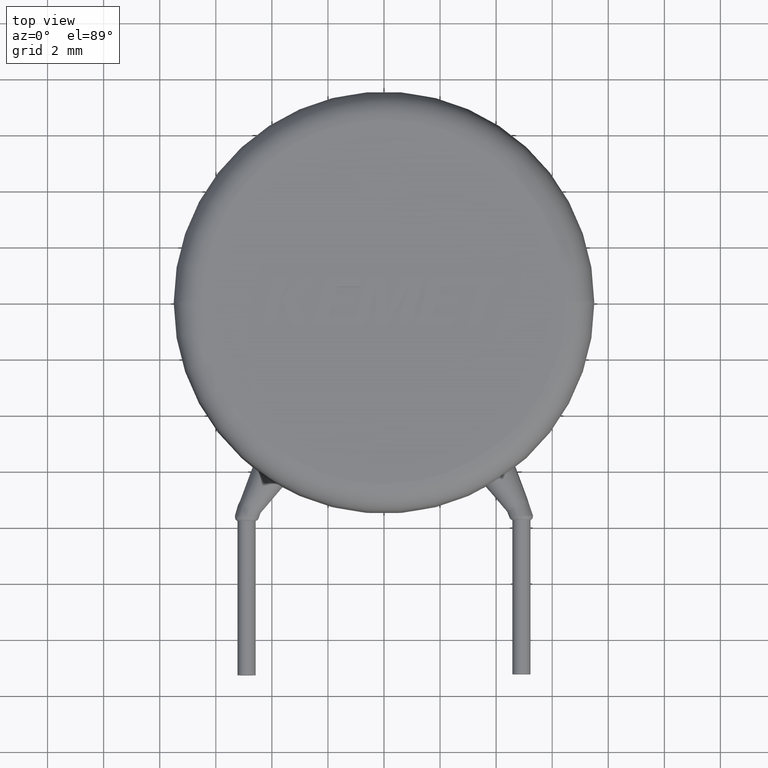
[diagram: clean part render]
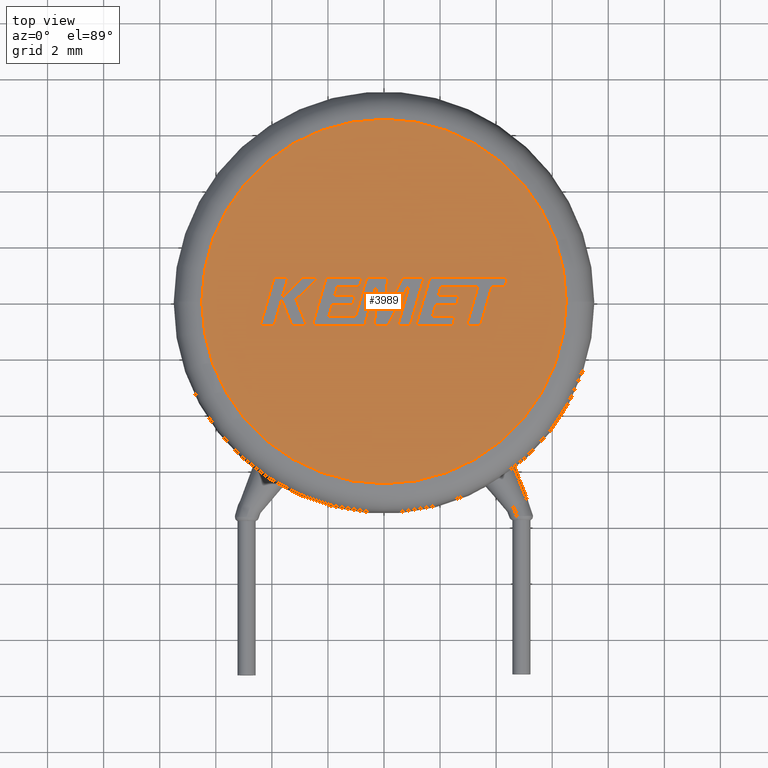
[diagram: same view with one face highlighted and labeled with its STEP entity id]
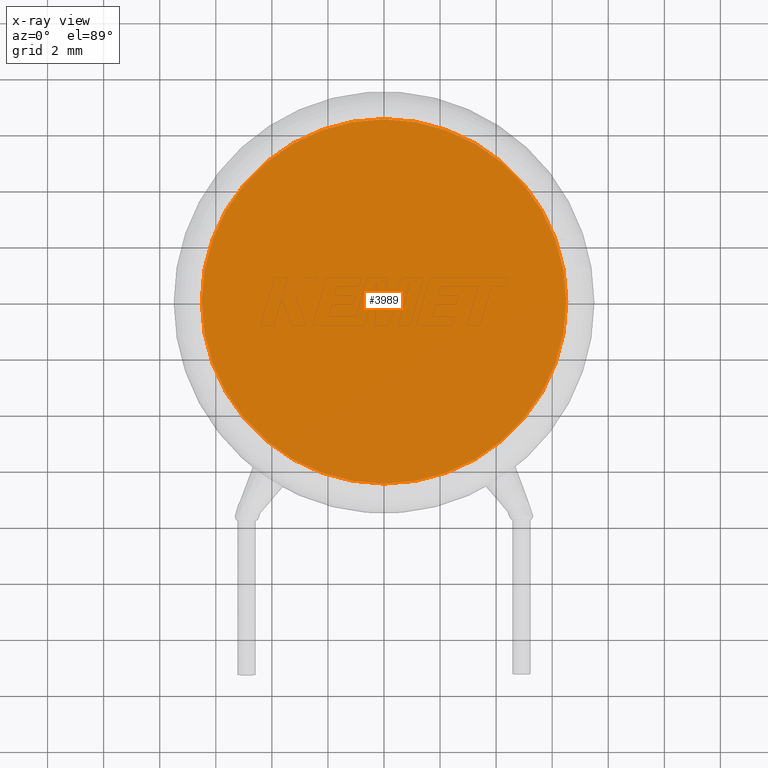
[diagram: x-ray of the same camera — body ghosted, the highlighted face saturated]
A machine part, top view. The second image highlights one B-rep face of the part: STEP entity #3989.
The next image is the same camera in x-ray: the body ghosted, the highlighted face saturated — about 0% of this face is hidden behind the body in this view.
In plain terms, the highlighted planar face has unit normal (0, 0, 1).
Its self-contained STEP definition (entity closure, byte-faithful):
#55 = DIRECTION ( 'NONE',  ( 0.0000000000000000000, 0.0000000000000000000, 1.000000000000000000 ) ) ;
#483 = CIRCLE ( 'NONE', #3716, 6.500000000000000000 ) ;
#581 = DIRECTION ( 'NONE',  ( 0.0000000000000000000, 0.0000000000000000000, 1.000000000000000000 ) ) ;
#593 = DIRECTION ( 'NONE',  ( 1.000000000000000000, 0.0000000000000000000, 0.0000000000000000000 ) ) ;
#635 = PLANE ( 'NONE',  #1367 ) ;
#727 = FACE_OUTER_BOUND ( 'NONE', #1627, .T. ) ;
#819 = EDGE_CURVE ( 'NONE', #2021, #3051, #4011, .T. ) ;
#956 = CARTESIAN_POINT ( 'NONE',  ( 0.0000000000000000000, 0.0000000000000000000, 5.000000000000000000 ) ) ;
#957 = CARTESIAN_POINT ( 'NONE',  ( 0.0000000000000000000, 0.0000000000000000000, 5.000000000000000000 ) ) ;
#1367 = AXIS2_PLACEMENT_3D ( 'NONE', #956, #55, #1973 ) ;
#1420 = EDGE_CURVE ( 'NONE', #3051, #2021, #483, .T. ) ;
#1627 = EDGE_LOOP ( 'NONE', ( #2289, #2690 ) ) ;
#1856 = CARTESIAN_POINT ( 'NONE',  ( 0.0000000000000000000, 0.0000000000000000000, 5.000000000000000000 ) ) ;
#1973 = DIRECTION ( 'NONE',  ( 1.000000000000000000, 0.0000000000000000000, -0.0000000000000000000 ) ) ;
#2021 = VERTEX_POINT ( 'NONE', #3337 ) ;
#2145 = DIRECTION ( 'NONE',  ( 0.0000000000000000000, 0.0000000000000000000, 1.000000000000000000 ) ) ;
#2289 = ORIENTED_EDGE ( 'NONE', *, *, #819, .T. ) ;
#2341 = CARTESIAN_POINT ( 'NONE',  ( -6.500000000000000000, 8.572527594031472200E-016, 5.000000000000000000 ) ) ;
#2690 = ORIENTED_EDGE ( 'NONE', *, *, #1420, .T. ) ;
#3051 = VERTEX_POINT ( 'NONE', #2341 ) ;
#3237 = DIRECTION ( 'NONE',  ( 1.000000000000000000, 0.0000000000000000000, 0.0000000000000000000 ) ) ;
#3337 = CARTESIAN_POINT ( 'NONE',  ( 6.500000000000000000, 0.0000000000000000000, 5.000000000000000000 ) ) ;
#3716 = AXIS2_PLACEMENT_3D ( 'NONE', #957, #581, #3237 ) ;
#3989 = ADVANCED_FACE ( 'NONE', ( #727 ), #635, .T. ) ;
#4011 = CIRCLE ( 'NONE', #4155, 6.500000000000000000 ) ;
#4155 = AXIS2_PLACEMENT_3D ( 'NONE', #1856, #2145, #593 ) ;